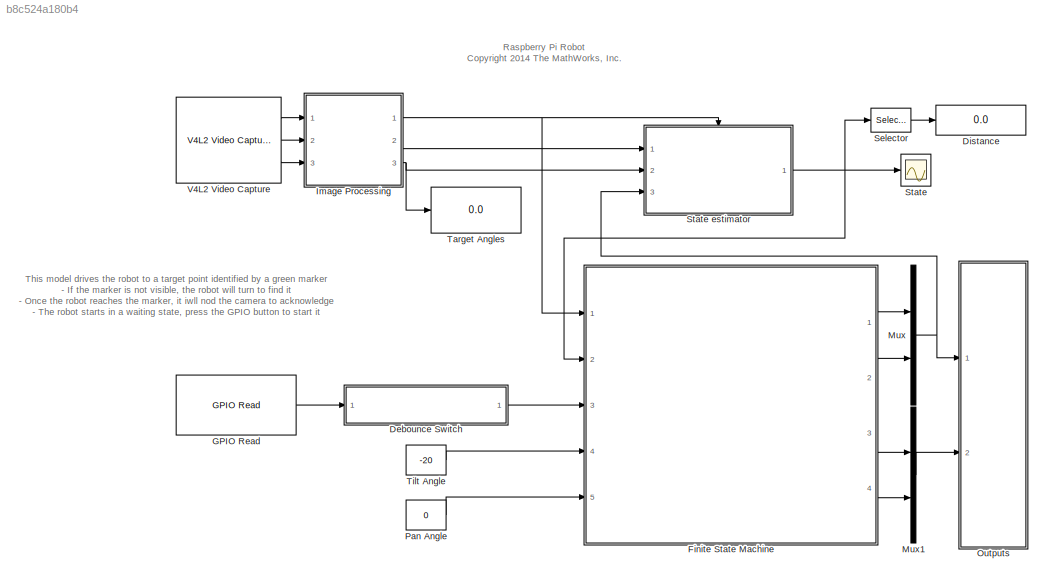
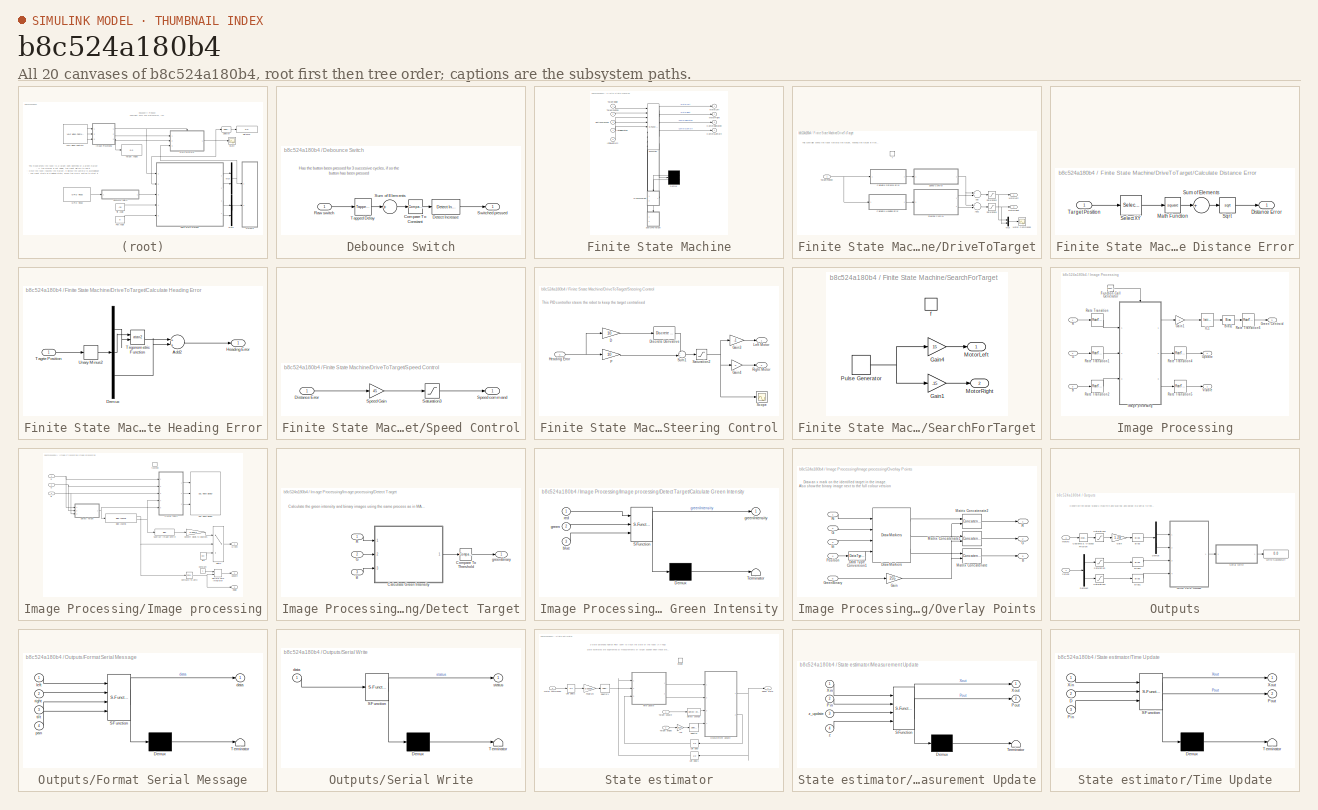
[diagram: thumbnail index - all 20 canvases of the model, root first then tree order]
MODEL slx_b8c524a180b4
KIND model
BLOCK [SubSystem] Debounce Switch
  Ports = [1, 1]
  RequestExecContextInheritance = off
BLOCK [Reference] Debounce Switch/Compare To Constant  REF=simulink/Logic and Bit
Operations/Compare
To Constant
  OutDataTypeStr = boolean
  Ports = [1, 1]
  SourceBlock = simulink/Logic and Bit\nOperations/Compare\nTo Constant
  SourceType = Compare To Constant
  ZeroCross = on
  const = 3
  relop = >=
BLOCK [Reference] Debounce Switch/Detect Increase  REF=simulink/Logic and Bit
Operations/Detect
Increase
  InputProcessing = Inherited
  OutDataTypeStr = boolean
  Ports = [1, 1]
  SourceBlock = simulink/Logic and Bit\nOperations/Detect\nIncrease
  SourceType = Detect Increase
  vinit = 0.0
BLOCK [Inport] Debounce Switch/Raw switch
  IconDisplay = Port number
BLOCK [Sum] Debounce Switch/Sum of Elements
  InputSameDT = off
  Inputs = +
  OutDataTypeStr = Inherit: Inherit via internal rule
  Ports = [1, 1]
  SaturateOnIntegerOverflow = off
BLOCK [Outport] Debounce Switch/Switched pressed
  IconDisplay = Port number
BLOCK [Reference] Debounce Switch/Tapped Delay  REF=simulink/Discrete/Tapped Delay
  DelayOrder = Oldest
  NumDelays = 3
  Ports = [1, 1]
  SourceBlock = simulink/Discrete/Tapped Delay
  SourceType = Tapped Delay Line
  includeCurrent = off
  samptime = -1
  vinit = 0.0
BLOCK [Display] Distance
  Decimation = 1
  Ports = [1]
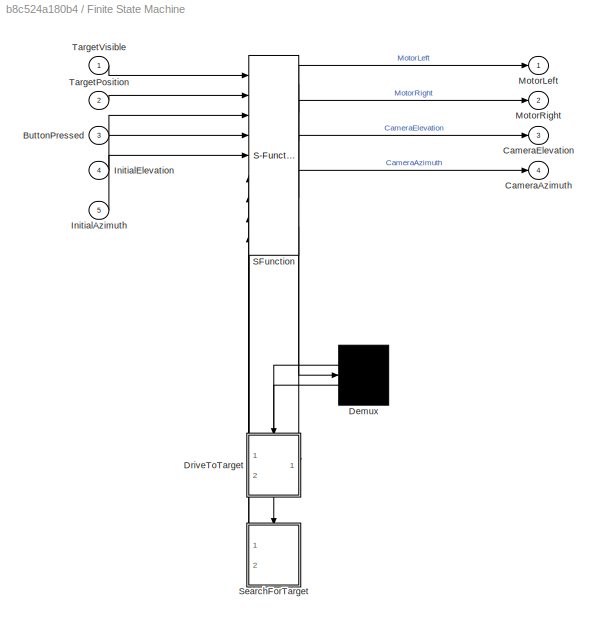
BLOCK [SubSystem] Finite State Machine
  ErrorFcn = Stateflow.Translate.translate
  PermitHierarchicalResolution = ExplicitOnly
  Ports = [5, 4]
  RequestExecContextInheritance = off
  SFBlockType = Chart
  TreatAsAtomicUnit = on
BLOCK [Demux] Finite State Machine/ Demux 
  Outputs = 2
  Ports = [1, 2]
BLOCK [S-Function] Finite State Machine/ SFunction 
  EnableBusSupport = on
  FunctionName = sf_sfun
  PortCounts = [9 6]
  Ports = [9, 6]
  Tag = Stateflow S-Function FindTarget 7
BLOCK [Inport] Finite State Machine/ButtonPressed
  IconDisplay = Port number
  Port = 3
BLOCK [Outport] Finite State Machine/CameraAzimuth
  IconDisplay = Port number
  Port = 4
BLOCK [Outport] Finite State Machine/CameraElevation
  IconDisplay = Port number
  Port = 3
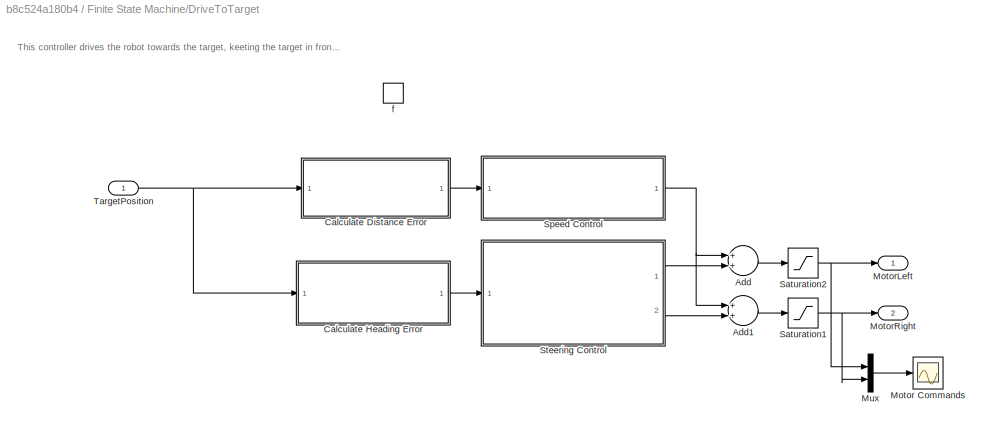
BLOCK [SubSystem] Finite State Machine/DriveToTarget
  Ports = [1, 2, 0, 1]
  PreDeleteFcn = Stateflow.SLINSF.SimulinkMan.removePreDeleteFcn
  RequestExecContextInheritance = off
  UndoDeleteFcn = Stateflow.SLINSF.SimulinkMan.restorePreDeleteFcn
BLOCK [Sum] Finite State Machine/DriveToTarget/Add
  InputSameDT = off
  OutDataTypeStr = Inherit: Inherit via internal rule
  Ports = [2, 1]
  SaturateOnIntegerOverflow = off
BLOCK [Sum] Finite State Machine/DriveToTarget/Add1
  InputSameDT = off
  OutDataTypeStr = Inherit: Inherit via internal rule
  Ports = [2, 1]
  SaturateOnIntegerOverflow = off
BLOCK [SubSystem] Finite State Machine/DriveToTarget/Calculate Distance Error
  Ports = [1, 1]
  RequestExecContextInheritance = off
BLOCK [Outport] Finite State Machine/DriveToTarget/Calculate Distance Error/Distance Error
  IconDisplay = Port number
BLOCK [Math] Finite State Machine/DriveToTarget/Calculate Distance Error/Math Function
  Operator = square
  Ports = [1, 1]
BLOCK [Selector] Finite State Machine/DriveToTarget/Calculate Distance Error/Select XY
  Indices = [1 2]
  InputPortWidth = 3
  Ports = [1, 1]
BLOCK [Sqrt] Finite State Machine/DriveToTarget/Calculate Distance Error/Sqrt
BLOCK [Sum] Finite State Machine/DriveToTarget/Calculate Distance Error/Sum of Elements
  InputSameDT = off
  Inputs = +
  OutDataTypeStr = Inherit: Inherit via internal rule
  Ports = [1, 1]
  SaturateOnIntegerOverflow = off
BLOCK [Inport] Finite State Machine/DriveToTarget/Calculate Distance Error/Target Position
  IconDisplay = Port number
BLOCK [SubSystem] Finite State Machine/DriveToTarget/Calculate Heading Error
  Ports = [1, 1]
  RequestExecContextInheritance = off
BLOCK [Sum] Finite State Machine/DriveToTarget/Calculate Heading Error/Add2
  InputSameDT = off
  OutDataTypeStr = Inherit: Inherit via internal rule
  Ports = [2, 1]
  SaturateOnIntegerOverflow = off
BLOCK [Demux] Finite State Machine/DriveToTarget/Calculate Heading Error/Demux
  DisplayOption = bar
  Outputs = 3
  Ports = [1, 3]
BLOCK [Outport] Finite State Machine/DriveToTarget/Calculate Heading Error/Heading Error
  IconDisplay = Port number
BLOCK [Inport] Finite State Machine/DriveToTarget/Calculate Heading Error/Tagrte Position
  IconDisplay = Port number
BLOCK [Trigonometry] Finite State Machine/DriveToTarget/Calculate Heading Error/Trigonometric Function
  Operator = atan2
  Ports = [2, 1]
BLOCK [UnaryMinus] Finite State Machine/DriveToTarget/Calculate Heading Error/Unary Minus2
BLOCK [Scope] Finite State Machine/DriveToTarget/Motor Commands
  DataFormat = StructureWithTime
  Floating = off
  NumInputPorts = 1
  Ports = [1]
  SampleTime = 0
  SaveName = ScopeData2
  ShowLegends = off
BLOCK [Outport] Finite State Machine/DriveToTarget/MotorLeft
  IconDisplay = Port number
  PortDimensions = 1
BLOCK [Outport] Finite State Machine/DriveToTarget/MotorRight
  IconDisplay = Port number
  Port = 2
  PortDimensions = 1
BLOCK [Mux] Finite State Machine/DriveToTarget/Mux
  DisplayOption = bar
  Inputs = 2
  Ports = [2, 1]
BLOCK [Saturate] Finite State Machine/DriveToTarget/Saturation1
  InputPortMap = u0
  LowerLimit = -30
  Ports = [1, 1]
  UpperLimit = 30
BLOCK [Saturate] Finite State Machine/DriveToTarget/Saturation2
  InputPortMap = u0
  LowerLimit = -30
  Ports = [1, 1]
  UpperLimit = 30
BLOCK [SubSystem] Finite State Machine/DriveToTarget/Speed Control
  Ports = [1, 1]
  RequestExecContextInheritance = off
BLOCK [Inport] Finite State Machine/DriveToTarget/Speed Control/Distance Error
  IconDisplay = Port number
BLOCK [Saturate] Finite State Machine/DriveToTarget/Speed Control/Saturation3
  InputPortMap = u0
  LowerLimit = 0
  Ports = [1, 1]
  UpperLimit = 10
BLOCK [Gain] Finite State Machine/DriveToTarget/Speed Control/Speed Gain
  Gain = 45
  OutDataTypeStr = Inherit: Inherit via internal rule
  ParamDataTypeStr = Inherit: Inherit via internal rule
  SaturateOnIntegerOverflow = off
BLOCK [Outport] Finite State Machine/DriveToTarget/Speed Control/Speed command
  IconDisplay = Port number
BLOCK [SubSystem] Finite State Machine/DriveToTarget/Steering Control
  Ports = [1, 2]
  RequestExecContextInheritance = off
BLOCK [Gain] Finite State Machine/DriveToTarget/Steering Control/D
  Gain = 10
  OutDataTypeStr = Inherit: Inherit via internal rule
  ParamDataTypeStr = Inherit: Inherit via internal rule
  SaturateOnIntegerOverflow = off
BLOCK [Reference] Finite State Machine/DriveToTarget/Steering Control/Discrete Derivative  REF=simulink/Discrete/Discrete Derivative
  DoSatur = off
  ICPrevScaledInput = 0.0
  InputProcessing = Inherited
  LockScale = off
  OutDataType = fixdt(1, 16)
  OutDataTypeStr = Inherit: Inherit via internal rule
  OutMax = []
  OutMin = []
  OutScaling = 2^-10
  OutputDataTypeScalingMode = Inherit via internal rule
  Ports = [1, 1]
  RndMeth = Floor
  SourceBlock = simulink/Discrete/Discrete Derivative
  SourceType = Discrete Derivative
  gainval = 1.0
BLOCK [Gain] Finite State Machine/DriveToTarget/Steering Control/Gain3
  Gain = -1
  OutDataTypeStr = Inherit: Inherit via internal rule
  ParamDataTypeStr = Inherit: Inherit via internal rule
  SaturateOnIntegerOverflow = off
BLOCK [Gain] Finite State Machine/DriveToTarget/Steering Control/Gain4
  OutDataTypeStr = Inherit: Inherit via internal rule
  ParamDataTypeStr = Inherit: Inherit via internal rule
  SaturateOnIntegerOverflow = off
BLOCK [Inport] Finite State Machine/DriveToTarget/Steering Control/Heading Error
  IconDisplay = Port number
  OutDataTypeStr = double
  PortDimensions = 1
  SignalType = real
  VarSizeSig = No
BLOCK [Outport] Finite State Machine/DriveToTarget/Steering Control/Left Motor
  IconDisplay = Port number
BLOCK [Gain] Finite State Machine/DriveToTarget/Steering Control/P
  Gain = 10
  OutDataTypeStr = Inherit: Inherit via internal rule
  ParamDataTypeStr = Inherit: Inherit via internal rule
  SaturateOnIntegerOverflow = off
BLOCK [Outport] Finite State Machine/DriveToTarget/Steering Control/Right Motor
  IconDisplay = Port number
  Port = 2
BLOCK [Saturate] Finite State Machine/DriveToTarget/Steering Control/Saturation2
  InputPortMap = u0
  LowerLimit = -20
  Ports = [1, 1]
  UpperLimit = 20
BLOCK [Scope] Finite State Machine/DriveToTarget/Steering Control/Scope
  DataFormat = StructureWithTime
  Floating = off
  NumInputPorts = 1
  Ports = [1]
  SampleTime = 0
  ShowLegends = off
BLOCK [Sum] Finite State Machine/DriveToTarget/Steering Control/Sum1
  IconShape = round
  InputSameDT = off
  Inputs = ++|
  OutDataTypeStr = Inherit: Inherit via internal rule
  Ports = [2, 1]
  SaturateOnIntegerOverflow = off
BLOCK [Inport] Finite State Machine/DriveToTarget/TargetPosition
  IconDisplay = Port number
  OutDataTypeStr = double
  PortDimensions = 3
  SignalType = real
  VarSizeSig = No
BLOCK [TriggerPort] Finite State Machine/DriveToTarget/f
  CopyFcn = Stateflow.SLINSF.SimulinkMan.removeBlockPreDeleteFcn
  Ports = []
  PreDeleteFcn = Stateflow.SLINSF.SimulinkMan.unsafePredeleteFcn
  SampleTime = 1/30
  SampleTimeType = periodic
  StatesWhenEnabling = reset
  TriggerType = function-call
BLOCK [Inport] Finite State Machine/InitialAzimuth
  IconDisplay = Port number
  Port = 5
BLOCK [Inport] Finite State Machine/InitialElevation
  IconDisplay = Port number
  Port = 4
BLOCK [Outport] Finite State Machine/MotorLeft
  IconDisplay = Port number
BLOCK [Outport] Finite State Machine/MotorRight
  IconDisplay = Port number
  Port = 2
BLOCK [SubSystem] Finite State Machine/SearchForTarget
  Ports = [0, 2, 0, 1]
  PreDeleteFcn = Stateflow.SLINSF.SimulinkMan.removePreDeleteFcn
  RequestExecContextInheritance = off
  UndoDeleteFcn = Stateflow.SLINSF.SimulinkMan.restorePreDeleteFcn
BLOCK [Gain] Finite State Machine/SearchForTarget/Gain1
  Gain = -15
  OutDataTypeStr = Inherit: Inherit via internal rule
  ParamDataTypeStr = Inherit: Inherit via internal rule
  SaturateOnIntegerOverflow = off
BLOCK [Gain] Finite State Machine/SearchForTarget/Gain4
  Gain = 15
  OutDataTypeStr = Inherit: Inherit via internal rule
  ParamDataTypeStr = Inherit: Inherit via internal rule
  SaturateOnIntegerOverflow = off
BLOCK [Outport] Finite State Machine/SearchForTarget/MotorLeft
  IconDisplay = Port number
  OutDataTypeStr = double
BLOCK [Outport] Finite State Machine/SearchForTarget/MotorRight
  IconDisplay = Port number
  OutDataTypeStr = double
  Port = 2
BLOCK [DiscretePulseGenerator] Finite State Machine/SearchForTarget/Pulse Generator
  Period = 10
  Ports = [0, 1]
  PulseWidth = 5
  SampleTime = -1
BLOCK [TriggerPort] Finite State Machine/SearchForTarget/f
  CopyFcn = Stateflow.SLINSF.SimulinkMan.removeBlockPreDeleteFcn
  Ports = []
  PreDeleteFcn = Stateflow.SLINSF.SimulinkMan.unsafePredeleteFcn
  SampleTime = 1/30
  SampleTimeType = periodic
  StatesWhenEnabling = reset
  TriggerType = function-call
BLOCK [Inport] Finite State Machine/TargetPosition
  IconDisplay = Port number
  Port = 2
BLOCK [Inport] Finite State Machine/TargetVisible
  IconDisplay = Port number
BLOCK [Reference] GPIO Read  REF=embdlinuxlib/GPIO Read
  Ports = [0, 1]
  SourceBlock = embdlinuxlib/GPIO Read
  SourceType = GPIO Read
  blockPlatform = Raspberry Pi
  board = Model B Rev2
  direction = Input
  gpio = 18
  internalResistor = Off
  sampleTime = 1/30
BLOCK [SubSystem] Image Processing
  Ports = [3, 3]
  RequestExecContextInheritance = off
BLOCK [Inport] Image Processing/B
  IconDisplay = Port number
  Port = 3
BLOCK [Bias] Image Processing/Bias1
  Bias = [-20 0]
  SaturateOnIntegerOverflow = off
BLOCK [Reference] Image Processing/Function-Call Generator  REF=simulink/Ports &
Subsystems/Function-Call
Generator
  Ports = [0, 1]
  SourceBlock = simulink/Ports &\nSubsystems/Function-Call\nGenerator
  SourceType = Function-Call Generator
  numberOfIterations = 1
  sample_time = 1/3
BLOCK [Inport] Image Processing/G
  IconDisplay = Port number
  Port = 2
BLOCK [Gain] Image Processing/Gain1
  Gain = -1
  OutDataTypeStr = Inherit: Inherit via internal rule
  ParamDataTypeStr = Inherit: Inherit via internal rule
  SaturateOnIntegerOverflow = off
BLOCK [Outport] Image Processing/Green Centroid
  IconDisplay = Port number
  Port = 3
BLOCK [InitialCondition] Image Processing/IC1
  Value = [-20 0]
BLOCK [SubSystem] Image Processing/Image processing
  Ports = [3, 3, 0, 1]
  RequestExecContextInheritance = off
BLOCK [Inport] Image Processing/Image processing/B
  IconDisplay = Port number
  Port = 3
BLOCK [Reference] Image Processing/Image processing/Blob Analysis  REF=visionstatistics/Blob Analysis
  LockScale = off
  Ports = [1, 2]
  SourceBlock = visionstatistics/Blob Analysis
  SourceType = Blob Analysis
  Tag = vipblks_row_conv
  accumFracLength = 0
  accumMode = Binary point scaling
  accumWordLength = 32
  angle = off
  area = on
  bBox = off
  centroid = on
  conn = 8
  eccentricity = off
  equivDiameterSq = off
  excludeBorderBlob = off
  extent = off
  fillValues = -1
  firstCoeffFracLength = 14
  firstCoeffMode = Binary point scaling
  firstCoeffWordLength = 16
  isCount = off
  isFill = on
  isLabel = off
  isOutVarDim = off
  majorAxis = off
  maxArea = intmax('uint32')
  maxBlobs = 1
  memoryFracLength = 16
  memoryMode = Same as product output
  memoryWordLength = 32
  minArea = 100
  minorAxis = off
  outDT = double
  outputFracLength = 16
  outputMode = Binary point scaling
  outputWordLength = 32
  overflowMode = off
  perimeter = off
  prodOutputFracLength = 16
  prodOutputMode = Binary point scaling
  prodOutputWordLength = 32
  roundingMode = Floor
  secondCoeffFracLength = 16
  secondCoeffMode = Binary point scaling
  secondCoeffWordLength = 32
  useMaxArea = off
  useMinArea = on
  warnIfNumBlobsExceeded = off
BLOCK [Reference] Image Processing/Image processing/Compare To Zero  REF=simulink/Logic and Bit
Operations/Compare
To Zero
  OutDataTypeStr = boolean
  Ports = [1, 1]
  SourceBlock = simulink/Logic and Bit\nOperations/Compare\nTo Zero
  SourceType = Compare To Zero
  ZeroCross = on
  relop = >
BLOCK [Constant] Image Processing/Image processing/Constant
BLOCK [Gain] Image Processing/Image processing/Convert pixels to degrees
  Gain = 0.083*2
  OutDataTypeStr = Inherit: Inherit via internal rule
  ParamDataTypeStr = Inherit: Inherit via internal rule
  SaturateOnIntegerOverflow = off
BLOCK [SubSystem] Image Processing/Image processing/Detect Target
  Ports = [3, 1]
  RequestExecContextInheritance = off
BLOCK [Inport] Image Processing/Image processing/Detect Target/B
  IconDisplay = Port number
  Port = 3
BLOCK [SubSystem] Image Processing/Image processing/Detect Target/Calculate Green Intensity
  ErrorFcn = Stateflow.Translate.translate
  PermitHierarchicalResolution = ExplicitOnly
  Ports = [3, 1]
  RequestExecContextInheritance = off
  SFBlockType = MATLAB Function
  TreatAsAtomicUnit = on
BLOCK [Demux] Image Processing/Image processing/Detect Target/Calculate Green Intensity/ Demux 
  Outputs = 1
  Ports = [1, 1]
BLOCK [S-Function] Image Processing/Image processing/Detect Target/Calculate Green Intensity/ SFunction 
  EnableBusSupport = on
  FunctionName = sf_sfun
  PortCounts = [3 2]
  Ports = [3, 2]
  Tag = Stateflow S-Function FindTarget 2
BLOCK [Terminator] Image Processing/Image processing/Detect Target/Calculate Green Intensity/ Terminator 
BLOCK [Inport] Image Processing/Image processing/Detect Target/Calculate Green Intensity/blue
  IconDisplay = Port number
  Port = 3
BLOCK [Inport] Image Processing/Image processing/Detect Target/Calculate Green Intensity/green
  IconDisplay = Port number
  Port = 2
BLOCK [Outport] Image Processing/Image processing/Detect Target/Calculate Green Intensity/greenIntensity
  IconDisplay = Port number
BLOCK [Inport] Image Processing/Image processing/Detect Target/Calculate Green Intensity/red
  IconDisplay = Port number
BLOCK [Reference] Image Processing/Image processing/Detect Target/Compare To Threshold  REF=simulink/Logic and Bit
Operations/Compare
To Constant
  OutDataTypeStr = boolean
  Ports = [1, 1]
  SourceBlock = simulink/Logic and Bit\nOperations/Compare\nTo Constant
  SourceType = Compare To Constant
  ZeroCross = on
  const = 40
  relop = >
BLOCK [Inport] Image Processing/Image processing/Detect Target/G
  IconDisplay = Port number
  Port = 2
BLOCK [Inport] Image Processing/Image processing/Detect Target/R
  IconDisplay = Port number
BLOCK [Outport] Image Processing/Image processing/Detect Target/greenBinary
  IconDisplay = Port number
BLOCK [DiscreteIntegrator] Image Processing/Image processing/Discrete-Time Integrator
  ExternalReset = rising
  ICPrevOutput = DiscIntNeverNeededParam
  ICPrevScaledInput = DiscIntNeverNeededParam
  IntegratorMethod = Accumulation: Forward Euler
  Ports = [2, 1]
  SampleTime = -1
BLOCK [Inport] Image Processing/Image processing/G
  IconDisplay = Port number
  Port = 2
BLOCK [Outport] Image Processing/Image processing/Green
  IconDisplay = Port number
BLOCK [SubSystem] Image Processing/Image processing/Overlay Points
  Ports = [5, 3]
  RequestExecContextInheritance = off
BLOCK [Outport] Image Processing/Image processing/Overlay Points/B
  IconDisplay = Port number
  Port = 3
BLOCK [Inport] Image Processing/Image processing/Overlay Points/Bi
  IconDisplay = Port number
  Port = 3
BLOCK [DataTypeConversion] Image Processing/Image processing/Overlay Points/Data Type Conversion1
  OutDataTypeStr = uint16
  RndMeth = Floor
  SaturateOnIntegerOverflow = off
BLOCK [Reference] Image Processing/Image processing/Overlay Points/Draw Markers  REF=visiontextngfix/Draw Markers
  LockScale = off
  Ports = [4, 3]
  SourceBlock = visiontextngfix/Draw Markers
  SourceType = Draw Markers
  accumFracLength = 14
  accumMode = Same as product output
  accumWordLength = 32
  antialiasing = off
  color = [255 0 0]
  display = User-specified value
  fill = off
  fillClrSource = Specify via dialog
  imagePorts = Separate color signals
  inType = Obsolete
  intensity = 200
  memoryFracLength = 15
  memoryMode = Specify word length
  memoryWordLength = 16
  opacity = 0.6
  overflowMode = off
  prodOutputFracLength = 14
  prodOutputMode = Binary point scaling
  prodOutputWordLength = 32
  roundingMode = Floor
  shape = X-mark
  size = 5
  viewport = Entire image
BLOCK [Outport] Image Processing/Image processing/Overlay Points/G
  IconDisplay = Port number
  Port = 2
BLOCK [Gain] Image Processing/Image processing/Overlay Points/Gain
  Gain = 255
  OutDataTypeStr = uint8
  ParamDataTypeStr = Inherit: Inherit via internal rule
  SaturateOnIntegerOverflow = off
BLOCK [Inport] Image Processing/Image processing/Overlay Points/Gi
  IconDisplay = Port number
  Port = 2
BLOCK [Inport] Image Processing/Image processing/Overlay Points/GreenBinary
  IconDisplay = Port number
  Port = 5
BLOCK [Concatenate] Image Processing/Image processing/Overlay Points/Matrix Concatenate
  Mode = Multidimensional array
  Ports = [2, 1]
BLOCK [Concatenate] Image Processing/Image processing/Overlay Points/Matrix Concatenate1
  Mode = Multidimensional array
  Ports = [2, 1]
BLOCK [Concatenate] Image Processing/Image processing/Overlay Points/Matrix Concatenate2
  Mode = Multidimensional array
  Ports = [2, 1]
BLOCK [Inport] Image Processing/Image processing/Overlay Points/Position
  IconDisplay = Port number
  Port = 4
BLOCK [Outport] Image Processing/Image processing/Overlay Points/R
  IconDisplay = Port number
BLOCK [Inport] Image Processing/Image processing/Overlay Points/Ri
  IconDisplay = Port number
BLOCK [Inport] Image Processing/Image processing/R
  IconDisplay = Port number
BLOCK [Reference] Image Processing/Image processing/SDL Video Display  REF=embdlinuxlib/SDL Video Display
  Ports = [3]
  SourceBlock = embdlinuxlib/SDL Video Display
  SourceType = SDL Video Display
  blockPlatform = Raspberry Pi
  pixelFormat = RGB
  pixelOrder = Planar
  rowMajor = on
BLOCK [Bias] Image Processing/Image processing/Subtract Image Centre
  Bias = -[240 320]/2
  SaturateOnIntegerOverflow = off
BLOCK [Switch] Image Processing/Image processing/Switch
  Criteria = u2 > Threshold
  InputSameDT = off
  SaturateOnIntegerOverflow = off
BLOCK [Constant] Image Processing/Image processing/Tilt1
  Value = [0 0]
BLOCK [Outport] Image Processing/Image processing/Update
  IconDisplay = Port number
  Port = 2
BLOCK [Outport] Image Processing/Image processing/Visible
  IconDisplay = Port number
  Port = 3
BLOCK [TriggerPort] Image Processing/Image processing/function
  Ports = []
  StatesWhenEnabling = reset
  TriggerType = function-call
BLOCK [Inport] Image Processing/R
  IconDisplay = Port number
BLOCK [RateTransition] Image Processing/Rate Transition
BLOCK [RateTransition] Image Processing/Rate Transition1
BLOCK [RateTransition] Image Processing/Rate Transition2
BLOCK [RateTransition] Image Processing/Rate Transition4
BLOCK [RateTransition] Image Processing/Rate Transition5
BLOCK [RateTransition] Image Processing/Rate Transition6
BLOCK [Outport] Image Processing/Update
  IconDisplay = Port number
  Port = 2
BLOCK [Outport] Image Processing/Visible
  IconDisplay = Port number
BLOCK [Mux] Mux
  DisplayOption = bar
  Inputs = 2
  Ports = [2, 1]
BLOCK [Mux] Mux1
  DisplayOption = bar
  Inputs = 2
  Ports = [2, 1]
BLOCK [SubSystem] Outputs
  Ports = [2]
  RequestExecContextInheritance = off
BLOCK [Bias] Outputs/Bias
  Bias = 128
  SaturateOnIntegerOverflow = off
BLOCK [Bias] Outputs/Bias1
  Bias = 90
  SaturateOnIntegerOverflow = off
BLOCK [Bias] Outputs/Bias2
  Bias = 80
  SaturateOnIntegerOverflow = off
BLOCK [Reference] Outputs/Coulomb & Viscous Friction  REF=simulink/Discontinuities/Coulomb &
Viscous Friction
  Ports = [1, 1]
  SourceBlock = simulink/Discontinuities/Coulomb &\nViscous Friction
  SourceType = Coulombic and Viscous Friction
  gain = 1
  offset = 5
BLOCK [Demux] Outputs/Demux
  DisplayOption = bar
  Outputs = 2
  Ports = [1, 2]
BLOCK [Demux] Outputs/Demux2
  DisplayOption = bar
  Outputs = 2
  Ports = [1, 2]
BLOCK [SubSystem] Outputs/Format Serial Message
  ErrorFcn = Stateflow.Translate.translate
  PermitHierarchicalResolution = ExplicitOnly
  Ports = [4, 1]
  RequestExecContextInheritance = off
  SFBlockType = MATLAB Function
  TreatAsAtomicUnit = on
BLOCK [Demux] Outputs/Format Serial Message/ Demux 
  Outputs = 1
  Ports = [1, 1]
BLOCK [S-Function] Outputs/Format Serial Message/ SFunction 
  EnableBusSupport = on
  FunctionName = sf_sfun
  PortCounts = [4 2]
  Ports = [4, 2]
  Tag = Stateflow S-Function FindTarget 3
BLOCK [Terminator] Outputs/Format Serial Message/ Terminator 
BLOCK [Outport] Outputs/Format Serial Message/data
  IconDisplay = Port number
BLOCK [Inport] Outputs/Format Serial Message/left
  IconDisplay = Port number
BLOCK [Inport] Outputs/Format Serial Message/pan
  IconDisplay = Port number
  Port = 4
BLOCK [Inport] Outputs/Format Serial Message/right
  IconDisplay = Port number
  Port = 2
BLOCK [Inport] Outputs/Format Serial Message/tilt
  IconDisplay = Port number
  Port = 3
BLOCK [Gain] Outputs/Gain
  Gain = 1.28
  OutDataTypeStr = Inherit: Inherit via internal rule
  ParamDataTypeStr = Inherit: Inherit via internal rule
  SaturateOnIntegerOverflow = off
BLOCK [Inport] Outputs/Motors
  IconDisplay = Port number
BLOCK [Saturate] Outputs/Saturation
  InputPortMap = u0
  LowerLimit = -30
  Ports = [1, 1]
  UpperLimit = 10
BLOCK [Saturate] Outputs/Saturation1
  InputPortMap = u0
  LowerLimit = -30
  Ports = [1, 1]
  UpperLimit = 10
BLOCK [Saturate] Outputs/Saturation3
  InputPortMap = u0
  LowerLimit = -100
  Ports = [1, 1]
  UpperLimit = 100
BLOCK [SubSystem] Outputs/Serial Write
  ErrorFcn = Stateflow.Translate.translate
  PermitHierarchicalResolution = ExplicitOnly
  Ports = [1, 1]
  RequestExecContextInheritance = off
  SFBlockType = MATLAB Function
  TreatAsAtomicUnit = on
BLOCK [Demux] Outputs/Serial Write/ Demux 
  Outputs = 1
  Ports = [1, 1]
BLOCK [S-Function] Outputs/Serial Write/ SFunction 
  EnableBusSupport = on
  FunctionName = sf_sfun
  PortCounts = [1 2]
  Ports = [1, 2]
  Tag = Stateflow S-Function FindTarget 4
BLOCK [Terminator] Outputs/Serial Write/ Terminator 
BLOCK [Inport] Outputs/Serial Write/data
  IconDisplay = Port number
BLOCK [Outport] Outputs/Serial Write/status
  IconDisplay = Port number
BLOCK [Inport] Outputs/Servos
  IconDisplay = Port number
  Port = 2
BLOCK [Display] Outputs/Write Successful?
  Decimation = 1
  Ports = [1]
BLOCK [Constant] Pan  Angle
  Value = 0
BLOCK [Selector] Selector
  InputPortWidth = 3
  Ports = [1, 1]
BLOCK [Scope] State
  Floating = off
  NumInputPorts = 1
  Ports = [1]
  SaveName = ScopeData1
  ShowLegends = off
  YMax = 0.25
  YMin = -0.45
BLOCK [SubSystem] State estimator
  Ports = [3, 1, 1]
  RequestExecContextInheritance = off
BLOCK [Reference] State estimator/Detect Change  REF=simulink/Logic and Bit
Operations/Detect
Change
  InputProcessing = Inherited
  OutDataTypeStr = boolean
  Ports = [1, 1]
  SourceBlock = simulink/Logic and Bit\nOperations/Detect\nChange
  SourceType = Detect Change
  vinit = 0
BLOCK [EnablePort] State estimator/Enable
  Ports = []
  StatesWhenEnabling = reset
BLOCK [SubSystem] State estimator/Measurement Update
  ErrorFcn = Stateflow.Translate.translate
  PermitHierarchicalResolution = ExplicitOnly
  Ports = [4, 2]
  RequestExecContextInheritance = off
  SFBlockType = MATLAB Function
  TreatAsAtomicUnit = on
BLOCK [Demux] State estimator/Measurement Update/ Demux 
  Outputs = 1
  Ports = [1, 1]
BLOCK [S-Function] State estimator/Measurement Update/ SFunction 
  EnableBusSupport = on
  FunctionName = sf_sfun
  PortCounts = [4 3]
  Ports = [4, 3]
  Tag = Stateflow S-Function FindTarget 1
BLOCK [Terminator] State estimator/Measurement Update/ Terminator 
BLOCK [Inport] State estimator/Measurement Update/Pin
  IconDisplay = Port number
  Port = 2
BLOCK [Outport] State estimator/Measurement Update/Pout
  IconDisplay = Port number
  Port = 2
BLOCK [Inport] State estimator/Measurement Update/Xin
  IconDisplay = Port number
BLOCK [Outport] State estimator/Measurement Update/Xout
  IconDisplay = Port number
BLOCK [Inport] State estimator/Measurement Update/z
  IconDisplay = Port number
  Port = 4
BLOCK [Inport] State estimator/Measurement Update/z_update
  IconDisplay = Port number
  Port = 3
BLOCK [Inport] State estimator/Motor commands
  IconDisplay = Port number
  Port = 3
BLOCK [Gain] State estimator/Power2m
  Gain = 0.00005
  OutDataTypeStr = Inherit: Inherit via internal rule
  ParamDataTypeStr = Inherit: Inherit via internal rule
  SaturateOnIntegerOverflow = off
BLOCK [Outport] State estimator/Robot State
  IconDisplay = Port number
BLOCK [Selector] State estimator/Selector
  Indices = [2 1]
  InputPortWidth = 2
  Ports = [1, 1]
BLOCK [Selector] State estimator/Selector1
  Indices = [2 1]
  InputPortWidth = 2
  Ports = [1, 1]
BLOCK [Inport] State estimator/Target angles
  IconDisplay = Port number
  Port = 2
BLOCK [Inport] State estimator/Target update
  IconDisplay = Port number
BLOCK [SubSystem] State estimator/Time Update
  ErrorFcn = Stateflow.Translate.translate
  PermitHierarchicalResolution = ExplicitOnly
  Ports = [3, 2]
  RequestExecContextInheritance = off
  SFBlockType = MATLAB Function
  TreatAsAtomicUnit = on
BLOCK [Demux] State estimator/Time Update/ Demux 
  Outputs = 1
  Ports = [1, 1]
BLOCK [S-Function] State estimator/Time Update/ SFunction 
  EnableBusSupport = on
  FunctionName = sf_sfun
  PortCounts = [3 3]
  Ports = [3, 3]
  Tag = Stateflow S-Function FindTarget 5
BLOCK [Terminator] State estimator/Time Update/ Terminator 
BLOCK [Inport] State estimator/Time Update/D
  IconDisplay = Port number
  Port = 2
BLOCK [Inport] State estimator/Time Update/Pin
  IconDisplay = Port number
  Port = 3
BLOCK [Outport] State estimator/Time Update/Pout
  IconDisplay = Port number
  Port = 2
BLOCK [Inport] State estimator/Time Update/Xin
  IconDisplay = Port number
BLOCK [Outport] State estimator/Time Update/Xout
  IconDisplay = Port number
BLOCK [UnitDelay] State estimator/Unit Delay
  InitialCondition = 0.1*eye(3)
  InputProcessing = Elements as channels (sample based)
  SampleTime = -1
BLOCK [UnitDelay] State estimator/Unit Delay1
  InitialCondition = [-0.4 0 0]'
  InputProcessing = Elements as channels (sample based)
  SampleTime = -1
BLOCK [UnitDelay] State estimator/Unit Delay2
  InitialCondition = [0 0]
  InputProcessing = Elements as channels (sample based)
  SampleTime = -1
BLOCK [Gain] State estimator/r2d
  Gain = pi/180
  OutDataTypeStr = Inherit: Inherit via internal rule
  ParamDataTypeStr = Inherit: Inherit via internal rule
  SaturateOnIntegerOverflow = off
BLOCK [Display] Target Angles
  Decimation = 1
  Ports = [1]
BLOCK [Constant] Tilt Angle
  Value = -20
BLOCK [Reference] V4L2 Video Capture  REF=embdlinuxlib/V4L2 Video Capture
  Ports = [0, 3]
  SourceBlock = embdlinuxlib/V4L2 Video Capture
  SourceType = V4L2 Video Capture
  blockPlatform = Raspberry Pi
  imSize = [160 128]
  imSizeSelection = 320x240
  m_devName = '/dev/video0'
  pixelFormat = RGB
  pixelOrder = Planar
  roi = [0, 0, 640, 480]
  sampleTime = 1/30
  simOutput = Colorbars
ANNOTATION (root): Raspberry Pi Robot <copyright redacted>
ANNOTATION (root): This model drives the robot to a target point identified by a green marker - If the marker is not visible, the robot will turn to find it - Once the robot reaches the marker, it iwll nod the camera to acknowledge - The robot starts in a waiting state, press the GPIO button to start it
ANNOTATION Debounce Switch: Has the button been pressed for 3 succesive cycles, if so the button has been pressed
ANNOTATION Finite State Machine/DriveToTarget: This controller drives the robot towards the target, keeting the target in front of it at all times
ANNOTATION Finite State Machine/DriveToTarget/Steering Control: This PID controller steers the robot to keep the target centralised
ANNOTATION Image Processing/Image processing/Detect Target: Calculate the green intensity and binary images using the same process as in MATLAB
ANNOTATION Image Processing/Image processing/Overlay Points: Draw an x mark on the identified target in the image. Also show the binary image next to the full colour version
ANNOTATION Outputs: Condition the output signals (max/min and scaling) and output via serial to the motor controller
ANNOTATION State estimator: 3-state Extended Kalman Filter (EKF) to track the state of the robot [X Y hdg] State estimates are augmented by measurements of target position when these are available.
LINE Debounce Switch/Compare To Constant:1 -> Debounce Switch/Detect Increase:1
LINE Debounce Switch/Detect Increase:1 -> Debounce Switch/Switched pressed:1
LINE Debounce Switch/Raw switch:1 -> Debounce Switch/Tapped Delay:1
LINE Debounce Switch/Sum of Elements:1 -> Debounce Switch/Compare To Constant:1
LINE Debounce Switch/Tapped Delay:1 -> Debounce Switch/Sum of Elements:1
LINE Debounce Switch:1 -> Finite State Machine:3
LINE Finite State Machine:1 -> Mux:1
LINE Finite State Machine:2 -> Mux:2
LINE Finite State Machine:3 -> Mux1:1
LINE Finite State Machine:4 -> Mux1:2
LINE GPIO Read:1 -> Debounce Switch:1
LINE Image Processing/B:1 -> Image Processing/Rate Transition2:1
LINE Image Processing/Bias1:1 -> Image Processing/Rate Transition6:1
LINE Image Processing/Function-Call Generator:1 -> Image Processing/Image processing:trigger
LINE Image Processing/G:1 -> Image Processing/Rate Transition1:1
LINE Image Processing/Gain1:1 -> Image Processing/IC1:1
LINE Image Processing/IC1:1 -> Image Processing/Bias1:1
NET Image Processing/Image processing/B:1 -> Image Processing/Image processing/Detect Target:3, Image Processing/Image processing/Overlay Points:3
NET Image Processing/Image processing/Blob Analysis:1 -> Image Processing/Image processing/Compare To Zero:1, Image Processing/Image processing/Switch:2
NET Image Processing/Image processing/Blob Analysis:2 -> Image Processing/Image processing/Overlay Points:4, Image Processing/Image processing/Subtract Image Centre:1
NET Image Processing/Image processing/Compare To Zero:1 -> Image Processing/Image processing/Discrete-Time Integrator:2, Image Processing/Image processing/Visible:1
LINE Image Processing/Image processing/Constant:1 -> Image Processing/Image processing/Discrete-Time Integrator:1
LINE Image Processing/Image processing/Convert pixels to degrees:1 -> Image Processing/Image processing/Switch:1
LINE Image Processing/Image processing/Detect Target/B:1 -> Image Processing/Image processing/Detect Target/Calculate Green Intensity:3
LINE Image Processing/Image processing/Detect Target/Calculate Green Intensity:1 -> Image Processing/Image processing/Detect Target/Compare To Threshold:1
LINE Image Processing/Image processing/Detect Target/Compare To Threshold:1 -> Image Processing/Image processing/Detect Target/greenBinary:1
LINE Image Processing/Image processing/Detect Target/G:1 -> Image Processing/Image processing/Detect Target/Calculate Green Intensity:2
LINE Image Processing/Image processing/Detect Target/R:1 -> Image Processing/Image processing/Detect Target/Calculate Green Intensity:1
NET Image Processing/Image processing/Detect Target:1 -> Image Processing/Image processing/Blob Analysis:1, Image Processing/Image processing/Overlay Points:5
LINE Image Processing/Image processing/Discrete-Time Integrator:1 -> Image Processing/Image processing/Update:1
NET Image Processing/Image processing/G:1 -> Image Processing/Image processing/Detect Target:2, Image Processing/Image processing/Overlay Points:2
LINE Image Processing/Image processing/Overlay Points/Bi:1 -> Image Processing/Image processing/Overlay Points/Draw Markers:3
LINE Image Processing/Image processing/Overlay Points/Data Type Conversion1:1 -> Image Processing/Image processing/Overlay Points/Draw Markers:4
LINE Image Processing/Image processing/Overlay Points/Draw Markers:1 -> Image Processing/Image processing/Overlay Points/Matrix Concatenate2:1
LINE Image Processing/Image processing/Overlay Points/Draw Markers:2 -> Image Processing/Image processing/Overlay Points/Matrix Concatenate1:1
LINE Image Processing/Image processing/Overlay Points/Draw Markers:3 -> Image Processing/Image processing/Overlay Points/Matrix Concatenate:1
NET Image Processing/Image processing/Overlay Points/Gain:1 -> Image Processing/Image processing/Overlay Points/Matrix Concatenate1:2, Image Processing/Image processing/Overlay Points/Matrix Concatenate2:2, Image Processing/Image processing/Overlay Points/Matrix Concatenate:2
LINE Image Processing/Image processing/Overlay Points/Gi:1 -> Image Processing/Image processing/Overlay Points/Draw Markers:2
LINE Image Processing/Image processing/Overlay Points/GreenBinary:1 -> Image Processing/Image processing/Overlay Points/Gain:1
LINE Image Processing/Image processing/Overlay Points/Matrix Concatenate1:1 -> Image Processing/Image processing/Overlay Points/G:1
LINE Image Processing/Image processing/Overlay Points/Matrix Concatenate2:1 -> Image Processing/Image processing/Overlay Points/R:1
LINE Image Processing/Image processing/Overlay Points/Matrix Concatenate:1 -> Image Processing/Image processing/Overlay Points/B:1
LINE Image Processing/Image processing/Overlay Points/Position:1 -> Image Processing/Image processing/Overlay Points/Data Type Conversion1:1
LINE Image Processing/Image processing/Overlay Points/Ri:1 -> Image Processing/Image processing/Overlay Points/Draw Markers:1
LINE Image Processing/Image processing/Overlay Points:1 -> Image Processing/Image processing/SDL Video Display:1
LINE Image Processing/Image processing/Overlay Points:2 -> Image Processing/Image processing/SDL Video Display:2
LINE Image Processing/Image processing/Overlay Points:3 -> Image Processing/Image processing/SDL Video Display:3
NET Image Processing/Image processing/R:1 -> Image Processing/Image processing/Detect Target:1, Image Processing/Image processing/Overlay Points:1
LINE Image Processing/Image processing/Subtract Image Centre:1 -> Image Processing/Image processing/Convert pixels to degrees:1
LINE Image Processing/Image processing/Switch:1 -> Image Processing/Image processing/Green:1
LINE Image Processing/Image processing/Tilt1:1 -> Image Processing/Image processing/Switch:3
LINE Image Processing/Image processing:1 -> Image Processing/Gain1:1
LINE Image Processing/Image processing:2 -> Image Processing/Rate Transition4:1
LINE Image Processing/Image processing:3 -> Image Processing/Rate Transition5:1
LINE Image Processing/R:1 -> Image Processing/Rate Transition:1
LINE Image Processing/Rate Transition1:1 -> Image Processing/Image processing:2
LINE Image Processing/Rate Transition2:1 -> Image Processing/Image processing:3
LINE Image Processing/Rate Transition4:1 -> Image Processing/Update:1
LINE Image Processing/Rate Transition5:1 -> Image Processing/Visible:1
LINE Image Processing/Rate Transition6:1 -> Image Processing/Green Centroid:1
LINE Image Processing/Rate Transition:1 -> Image Processing/Image processing:1
NET Image Processing:1 -> Finite State Machine:1, State estimator:enable
LINE Image Processing:2 -> State estimator:1
NET Image Processing:3 -> State estimator:2, Target Angles:1
LINE Mux1:1 -> Outputs:2
NET Mux:1 -> Outputs:1, State estimator:3
LINE Outputs/Bias1:1 -> Outputs/Format Serial Message:4
LINE Outputs/Bias2:1 -> Outputs/Format Serial Message:3
LINE Outputs/Bias:1 -> Outputs/Demux:1
LINE Outputs/Coulomb & Viscous Friction:1 -> Outputs/Saturation3:1
LINE Outputs/Demux2:1 -> Outputs/Saturation:1
LINE Outputs/Demux2:2 -> Outputs/Saturation1:1
LINE Outputs/Demux:1 -> Outputs/Format Serial Message:1
LINE Outputs/Demux:2 -> Outputs/Format Serial Message:2
LINE Outputs/Format Serial Message:1 -> Outputs/Serial Write:1
LINE Outputs/Gain:1 -> Outputs/Bias:1
LINE Outputs/Motors:1 -> Outputs/Coulomb & Viscous Friction:1
LINE Outputs/Saturation1:1 -> Outputs/Bias1:1
LINE Outputs/Saturation3:1 -> Outputs/Gain:1
LINE Outputs/Saturation:1 -> Outputs/Bias2:1
LINE Outputs/Serial Write:1 -> Outputs/Write Successful?:1
LINE Outputs/Servos:1 -> Outputs/Demux2:1
LINE Pan  Angle:1 -> Finite State Machine:5
LINE Selector:1 -> Distance:1
LINE State estimator/Detect Change:1 -> State estimator/Measurement Update:3
NET State estimator/Measurement Update:1 -> State estimator/Robot State:1, State estimator/Unit Delay1:1
LINE State estimator/Measurement Update:2 -> State estimator/Unit Delay:1
LINE State estimator/Motor commands:1 -> State estimator/Unit Delay2:1
LINE State estimator/Power2m:1 -> State estimator/Selector1:1
LINE State estimator/Selector1:1 -> State estimator/Time Update:2
LINE State estimator/Selector:1 -> State estimator/Measurement Update:4
LINE State estimator/Target angles:1 -> State estimator/r2d:1
LINE State estimator/Target update:1 -> State estimator/Detect Change:1
LINE State estimator/Time Update:1 -> State estimator/Measurement Update:1
LINE State estimator/Time Update:2 -> State estimator/Measurement Update:2
LINE State estimator/Unit Delay1:1 -> State estimator/Time Update:1
LINE State estimator/Unit Delay2:1 -> State estimator/Power2m:1
LINE State estimator/Unit Delay:1 -> State estimator/Time Update:3
LINE State estimator/r2d:1 -> State estimator/Selector:1
NET State estimator:1 -> Finite State Machine:2, Selector:1, State:1
LINE Tilt Angle:1 -> Finite State Machine:4
LINE V4L2 Video Capture:1 -> Image Processing:1
LINE V4L2 Video Capture:2 -> Image Processing:2
LINE V4L2 Video Capture:3 -> Image Processing:3
note: NET lines group one-source signal fan-out (src -> all destinations, sorted); 1:1 wires keep LINE
